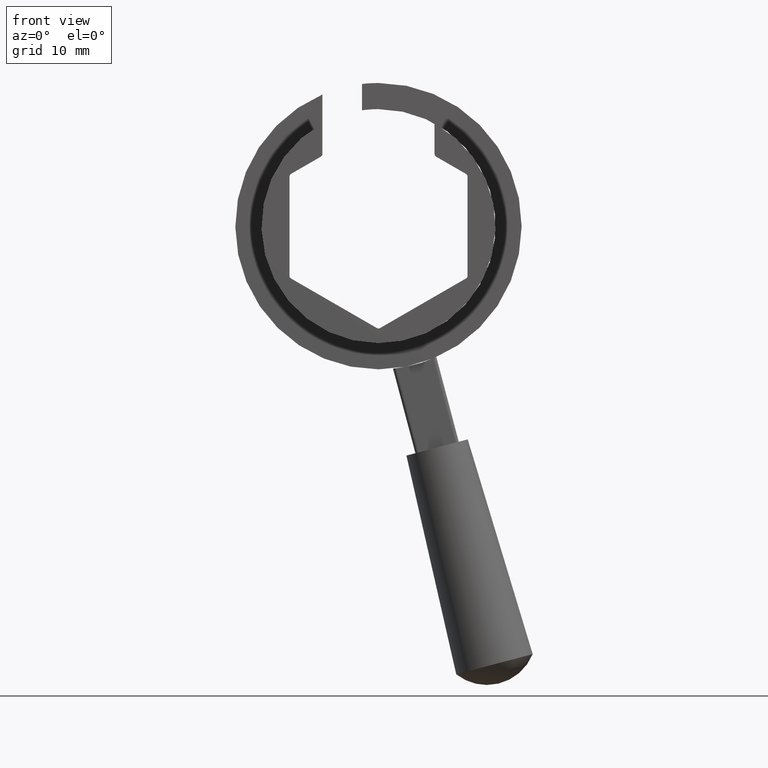
[diagram: clean part render]
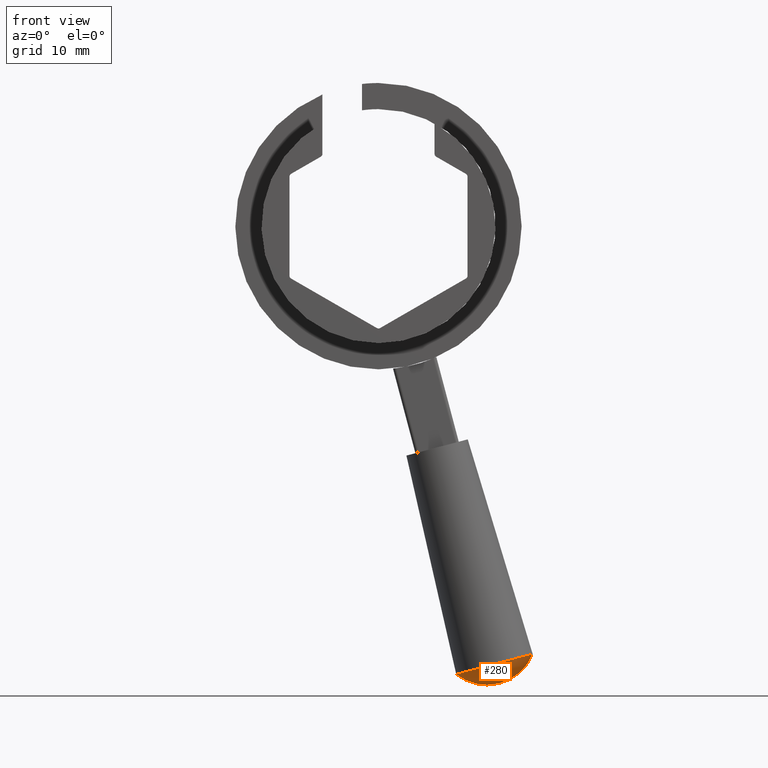
[diagram: same view with one face highlighted and labeled with its STEP entity id]
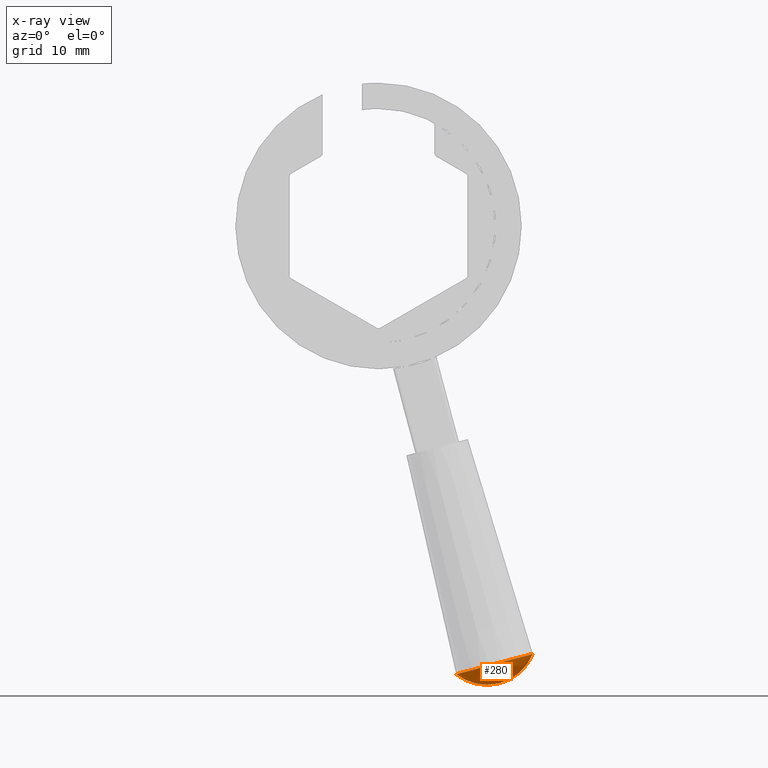
[diagram: x-ray of the same camera — body ghosted, the highlighted face saturated]
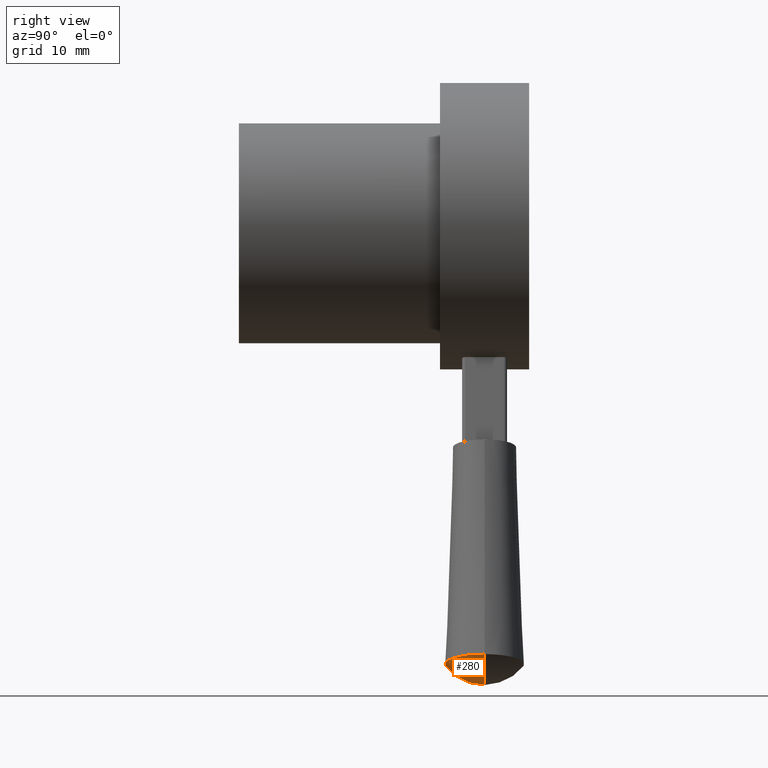
[diagram: same view with one face highlighted and labeled with its STEP entity id]
A machine part, front view. The second image highlights one B-rep face of the part: STEP entity #280.
The next image is the same camera in x-ray: the body ghosted, the highlighted face saturated — about 0% of this face is hidden behind the body in this view.
A second angle (right view) of the same face is appended — the face is thin or edge-on in the first view.
In plain terms, the highlighted spherical surface has radius 7.4913 mm.
Its self-contained STEP definition (entity closure, byte-faithful):
#196 = VERTEX_POINT ( 'NONE', #802 ) ;
#218 = VERTEX_POINT ( 'NONE', #945 ) ;
#222 = EDGE_CURVE ( 'NONE', #218, #196, #888, .T. ) ;
#226 = EDGE_CURVE ( 'NONE', #218, #230, #877, .T. ) ;
#230 = VERTEX_POINT ( 'NONE', #836 ) ;
#280 = ADVANCED_FACE ( 'NONE', ( #979 ), #978, .T. ) ;
#281 = EDGE_LOOP ( 'NONE', ( #282, #283, #305 ) ) ;
#282 = ORIENTED_EDGE ( 'NONE', *, *, #226, .F. ) ;
#283 = ORIENTED_EDGE ( 'NONE', *, *, #222, .T. ) ;
#305 = ORIENTED_EDGE ( 'NONE', *, *, #486, .T. ) ;
#486 = EDGE_CURVE ( 'NONE', #196, #230, #1284, .T. ) ;
#802 = CARTESIAN_POINT ( 'NONE',  ( 23.38346375543394400, 37.24899999999992400, -64.88624915321261700 ) ) ;
#836 = CARTESIAN_POINT ( 'NONE',  ( 11.79168574441448500, 37.24899999999992400, -67.95563150820873900 ) ) ;
#873 = DIRECTION ( 'NONE',  ( -1.000000000000000000, 0.0000000000000000000, 0.0000000000000000000 ) ) ;
#874 = DIRECTION ( 'NONE',  ( 1.224646799147353200E-016, 1.000000000000000000, 0.0000000000000000000 ) ) ;
#875 = CARTESIAN_POINT ( 'NONE',  ( 16.43795305137794900, 37.24899999999992400, -62.07929827216815300 ) ) ;
#876 = AXIS2_PLACEMENT_3D ( 'NONE', #875, #874, #873 ) ;
#877 = CIRCLE ( 'NONE', #876, 7.491267729079820200 ) ;
#884 = DIRECTION ( 'NONE',  ( 0.0000000000000000000, 0.0000000000000000000, -1.000000000000000000 ) ) ;
#885 = DIRECTION ( 'NONE',  ( 0.0000000000000000000, -1.000000000000000000, 0.0000000000000000000 ) ) ;
#886 = CARTESIAN_POINT ( 'NONE',  ( 16.43795305137794900, 37.24899999999992400, -62.07929827216815300 ) ) ;
#887 = AXIS2_PLACEMENT_3D ( 'NONE', #886, #885, #884 ) ;
#888 = CIRCLE ( 'NONE', #887, 7.491267729079820200 ) ;
#945 = CARTESIAN_POINT ( 'NONE',  ( 16.43795305137794900, 37.24899999999992400, -69.57056600124796800 ) ) ;
#974 = DIRECTION ( 'NONE',  ( 1.000000000000000000, 0.0000000000000000000, 0.0000000000000000000 ) ) ;
#975 = DIRECTION ( 'NONE',  ( 0.0000000000000000000, 1.000000000000000000, 0.0000000000000000000 ) ) ;
#976 = CARTESIAN_POINT ( 'NONE',  ( 16.43795305137794900, 37.24899999999992400, -62.07929827216815300 ) ) ;
#977 = AXIS2_PLACEMENT_3D ( 'NONE', #976, #975, #974 ) ;
#978 = SPHERICAL_SURFACE ( 'NONE', #977, 7.491267729079821100 ) ;
#979 = FACE_OUTER_BOUND ( 'NONE', #281, .T. ) ;
#1266 = DIRECTION ( 'NONE',  ( -0.9666852034741761900, 0.0000000000000000000, -0.2559681960402316300 ) ) ;
#1267 = DIRECTION ( 'NONE',  ( 0.2559681960402310200, 0.0000000000000000000, -0.9666852034741764100 ) ) ;
#1268 = CARTESIAN_POINT ( 'NONE',  ( 17.58757474992421500, 37.24899999999992400, -66.42094033071067800 ) ) ;
#1269 = AXIS2_PLACEMENT_3D ( 'NONE', #1268, #1267, #1266 ) ;
#1284 = CIRCLE ( 'NONE', #1269, 5.995632274787952900 ) ;